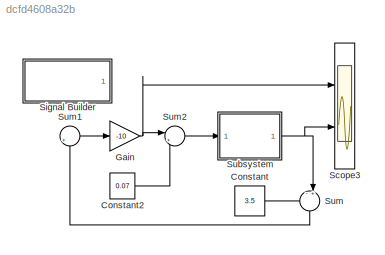
MODEL slx_dcfd4608a32b
KIND model
CONFIG AbsTol = auto
CONFIG EnableMultiTasking = off
CONFIG FixedStep = 0.279098492389953
CONFIG MaxStep = auto
CONFIG MinStep = auto
CONFIG RelTol = 1e-3
CONFIG SampleTimeConstraint = Unconstrained
CONFIG SolverName = VariableStepAuto
CONFIG StartTime = 0.0
CONFIG StopTime = 300
WORKSPACE source: mxarray member
WORKSPACE ca = 0.02
WORKSPACE cb = 0.2
WORKSPACE ea = 0.06
WORKSPACE eb = 0.02
WORKSPACE pa = 3
WORKSPACE pb = 3
WORKSPACE u = 0.07
WORKSPACE v = 4
BLOCK [Constant] Constant
  Value = 3.5
BLOCK [Constant] Constant2
  Value = 0.07
BLOCK [Gain] Gain
  Gain = -10
BLOCK [Scope] Scope3
  Floating = off
  NumInputPorts = 2
  Ports = [2]
  ScopeSpecificationString = Simulink.scopes.TimeScopeBlockCfg('CurrentConfiguration', extmgr.ConfigurationSet(extmgr.Configuration('Core','General UI',true),extmgr.Configuration('Core','Source UI',true),extmgr.Configuration('Sources','WiredSimulink',true,'DataLoggingVariableName','ScopeData1'),extmgr.Configuration('Visuals','Time Domain',true,'SerializedDisplays',{struct('MinYLimReal','-11.81236','MaxYLimReal','6.31128','YLa...<+1406ch>
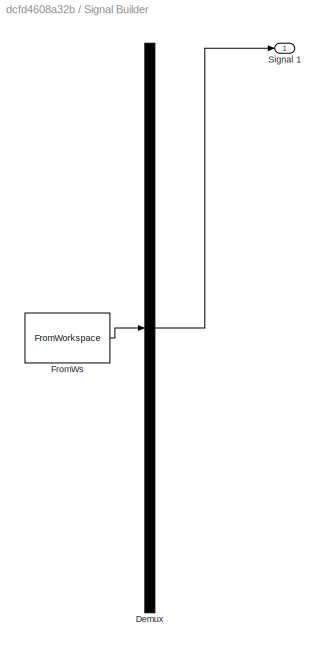
BLOCK [SubSystem] Signal Builder
  ClipboardFcn = sigbuilder_block('clipboard');
  CloseFcn = sigbuilder_block('close');
  ContinueFcn = sigbuilder_block('continue');
  CopyFcn = sigbuilder_block('copy');
  DeleteFcn = sigbuilder_block('delete');
  LoadFcn = sigbuilder_block('load');
  MaskHideContents = on
  ModelCloseFcn = sigbuilder_block('modelClose');
  NameChangeFcn = sigbuilder_block('namechange');
  OpenFcn = sigbuilder_block('open',[437.6 153 550.4 359.25 ]);
  PauseFcn = sigbuilder_block('pause');
  Ports = [0, 1]
  PreSaveFcn = sigbuilder_block('preSave');
  RequestExecContextInheritance = off
  StartFcn = sigbuilder_block('start');
  StopFcn = sigbuilder_block('stop');
  Tag = STV Subsys
BLOCK [Demux] Signal Builder/Demux
  DisplayOption = none
  Outputs = 1
  Ports = [1, 1]
  Tag = STV Demux
BLOCK [FromWorkspace] Signal Builder/FromWs
  Tag = STV FromWs
  VariableName = tuvar
BLOCK [Outport] Signal Builder/Signal 1
  Tag = STV Outport
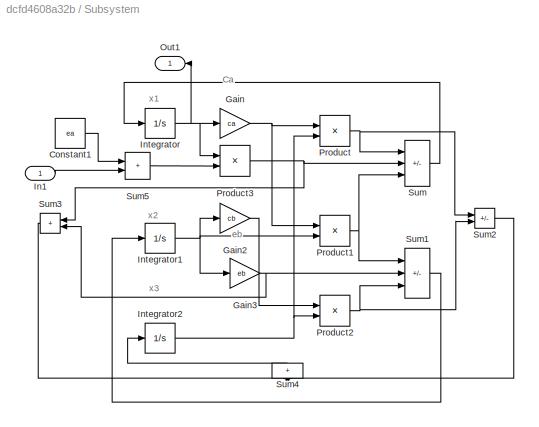
BLOCK [SubSystem] Subsystem
  Ports = [1, 1]
  RequestExecContextInheritance = off
BLOCK [Constant] Subsystem/Constant1
  Value = ea
BLOCK [Gain] Subsystem/Gain
  Gain = ca
BLOCK [Gain] Subsystem/Gain2
  Gain = cb
BLOCK [Gain] Subsystem/Gain3
  Gain = eb
BLOCK [Inport] Subsystem/In1
BLOCK [Integrator] Subsystem/Integrator
  InitialCondition = pa
  LimitOutput = on
  LowerSaturationLimit = 0
  Ports = [1, 1]
BLOCK [Integrator] Subsystem/Integrator1
  InitialCondition = pb
  LimitOutput = on
  LowerSaturationLimit = 0
  Ports = [1, 1]
BLOCK [Integrator] Subsystem/Integrator2
  InitialCondition = v
  LimitOutput = on
  LowerSaturationLimit = 0
  Ports = [1, 1]
BLOCK [Outport] Subsystem/Out1
BLOCK [Product] Subsystem/Product
  Ports = [2, 1]
BLOCK [Product] Subsystem/Product1
  Ports = [2, 1]
BLOCK [Product] Subsystem/Product2
  Ports = [2, 1]
BLOCK [Product] Subsystem/Product3
  Ports = [2, 1]
BLOCK [Sum] Subsystem/Sum
  IconShape = rectangular
  Inputs = +-+
  Ports = [3, 1]
BLOCK [Sum] Subsystem/Sum1
  IconShape = rectangular
  Inputs = --+
  Ports = [3, 1]
BLOCK [Sum] Subsystem/Sum2
  IconShape = rectangular
  Inputs = --
  Ports = [2, 1]
BLOCK [Sum] Subsystem/Sum3
  IconShape = rectangular
  NameLocation = top
  Ports = [2, 1]
BLOCK [Sum] Subsystem/Sum4
  IconShape = rectangular
  NameLocation = right
  Ports = [2, 1]
BLOCK [Sum] Subsystem/Sum5
  IconShape = rectangular
  Ports = [2, 1]
BLOCK [Sum] Sum
  Inputs = -+|
  NameLocation = left
  Ports = [2, 1]
BLOCK [Sum] Sum1
  Inputs = |+-
  Ports = [2, 1]
BLOCK [Sum] Sum2
  Inputs = |++
  Ports = [2, 1]
ANNOTATION Subsystem: Ca
ANNOTATION Subsystem: eb
ANNOTATION Subsystem: x1
ANNOTATION Subsystem: x2
ANNOTATION Subsystem: x3
LINE Constant2:1 -> Sum2:2
LINE Constant:1 -> Sum:1
NET Gain:1 -> Scope3:1, Sum2:1
LINE Subsystem/Constant1:1 -> Subsystem/Sum5:1
LINE Subsystem/Gain2:1 -> Subsystem/Product2:1
NET Subsystem/Gain3:1 -> Subsystem/Sum1:2, Subsystem/Sum3:2
NET Subsystem/Gain:1 -> Subsystem/Product1:1, Subsystem/Product:1
LINE Subsystem/In1:1 -> Subsystem/Sum5:2
NET Subsystem/Integrator1:1 -> Subsystem/Gain2:1, Subsystem/Gain3:1, Subsystem/Product1:2
NET Subsystem/Integrator2:1 -> Subsystem/Product2:2, Subsystem/Product:2
NET Subsystem/Integrator:1 -> Subsystem/Gain:1, Subsystem/Out1:1, Subsystem/Product3:1
NET Subsystem/Product1:1 -> Subsystem/Sum1:1, Subsystem/Sum:3
NET Subsystem/Product2:1 -> Subsystem/Sum1:3, Subsystem/Sum2:2
NET Subsystem/Product3:1 -> Subsystem/Sum3:1, Subsystem/Sum:2
NET Subsystem/Product:1 -> Subsystem/Sum2:1, Subsystem/Sum:1
LINE Subsystem/Sum1:1 -> Subsystem/Integrator1:1
LINE Subsystem/Sum2:1 -> Subsystem/Sum4:2
LINE Subsystem/Sum3:1 -> Subsystem/Sum4:1
LINE Subsystem/Sum4:1 -> Subsystem/Integrator2:1
LINE Subsystem/Sum5:1 -> Subsystem/Product3:2
LINE Subsystem/Sum:1 -> Subsystem/Integrator:1
NET Subsystem:1 -> Scope3:2, Sum:2
LINE Sum1:1 -> Gain:1
LINE Sum2:1 -> Subsystem:1
LINE Sum:1 -> Sum1:2
note: NET lines group one-source signal fan-out (src -> all destinations, sorted); 1:1 wires keep LINE
